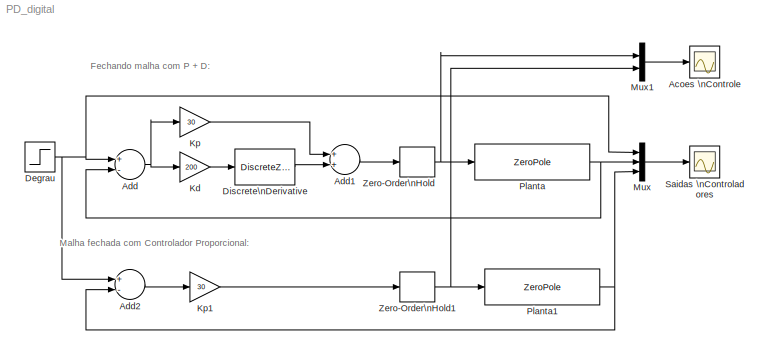
MODEL PD_digital
KIND model
BLOCK [Scope] Acoes \nControle
  Floating = off
  NumInputPorts = 1
  Ports = [1]
  SID = 7
  ScopeSpecificationString = Simulink.scopes.TimeScopeBlockCfg('CurrentConfiguration', extmgr.ConfigurationSet(extmgr.Configuration('Core','General UI',true,'FigureColor',[1 1 1]),extmgr.Configuration('Core','Source UI',true),extmgr.Configuration('Sources','WiredSimulink',true,'DataLoggingVariableName','ScopeData1'),extmgr.Configuration('Visuals','Time Domain',true,'SerializedDisplays',{struct('MinYLimReal','-36.67893','MaxYL...<+1728ch>
BLOCK [Sum] Add
  InputSameDT = off
  Inputs = +-
  OutDataTypeStr = Inherit: Inherit via internal rule
  Ports = [2, 1]
  SID = 2
  SaturateOnIntegerOverflow = off
BLOCK [Sum] Add1
  InputSameDT = off
  OutDataTypeStr = Inherit: Inherit via internal rule
  Ports = [2, 1]
  SID = 16
  SaturateOnIntegerOverflow = off
BLOCK [Sum] Add2
  InputSameDT = off
  Inputs = +-
  OutDataTypeStr = Inherit: Inherit via internal rule
  Ports = [2, 1]
  SID = 17
  SaturateOnIntegerOverflow = off
BLOCK [Step] Degrau
  SID = 1
  SampleTime = 0
BLOCK [DiscreteZeroPole] Discrete\nDerivative
  Gain = 1
  Poles = [0]
  SID = 14
  SampleTime = 0.1
BLOCK [Gain] Kd
  Gain = 200
  OutDataTypeStr = Inherit: Inherit via internal rule
  ParamDataTypeStr = Inherit: Inherit via internal rule
  SID = 37
  SaturateOnIntegerOverflow = off
BLOCK [Gain] Kp
  Gain = 30
  OutDataTypeStr = Inherit: Inherit via internal rule
  ParamDataTypeStr = Inherit: Inherit via internal rule
  SID = 15
  SaturateOnIntegerOverflow = off
BLOCK [Gain] Kp1
  Gain = 30
  OutDataTypeStr = Inherit: Inherit via internal rule
  ParamDataTypeStr = Inherit: Inherit via internal rule
  SID = 20
  SaturateOnIntegerOverflow = off
BLOCK [Mux] Mux
  DisplayOption = bar
  Inputs = 3
  Ports = [3, 1]
  SID = 5
BLOCK [Mux] Mux1
  DisplayOption = bar
  Inputs = 2
  Ports = [2, 1]
  SID = 38
BLOCK [ZeroPole] Planta
  Poles = [-1 -2 -10]
  SID = 4
  Zeros = [ ]
BLOCK [ZeroPole] Planta1
  Poles = [-1 -2 -10]
  SID = 25
  Zeros = [ ]
BLOCK [Scope] Saidas \nControladores
  Floating = off
  NumInputPorts = 1
  Ports = [1]
  SID = 36
  ScopeSpecificationString = Simulink.scopes.TimeScopeBlockCfg('CurrentConfiguration', extmgr.ConfigurationSet(extmgr.Configuration('Core','General UI',true,'FigureColor',[1 1 1]),extmgr.Configuration('Core','Source UI',true),extmgr.Configuration('Sources','WiredSimulink',true,'DataLoggingVariableName','ScopeData1'),extmgr.Configuration('Visuals','Time Domain',true,'SerializedDisplays',{struct('MinYLimReal','0.00748','MaxYLim...<+1809ch>
BLOCK [ZeroOrderHold] Zero-Order\nHold
  SID = 12
  SampleTime = 0.1
BLOCK [ZeroOrderHold] Zero-Order\nHold1
  SID = 24
  SampleTime = 0.1
ANNOTATION (root): Fechando malha com P + D:
ANNOTATION (root): Malha fechada com Controlador Proporcional:
LINE Add1:1 -> Zero-Order\nHold:1
LINE Add2:1 -> Kp1:1
NET Add:1 -> Kd:1, Kp:1
NET Degrau:1 -> Add2:1, Add:1, Mux:1
LINE Discrete\nDerivative:1 -> Add1:2
LINE Kd:1 -> Discrete\nDerivative:1
LINE Kp1:1 -> Zero-Order\nHold1:1
LINE Kp:1 -> Add1:1
LINE Mux1:1 -> Acoes \nControle:1
LINE Mux:1 -> Saidas \nControladores:1
NET Planta1:1 -> Add2:2, Mux:3
NET Planta:1 -> Add:2, Mux:2
NET Zero-Order\nHold1:1 -> Mux1:2, Planta1:1
NET Zero-Order\nHold:1 -> Mux1:1, Planta:1
note: NET lines group one-source signal fan-out (src -> all destinations, sorted); 1:1 wires keep LINE
